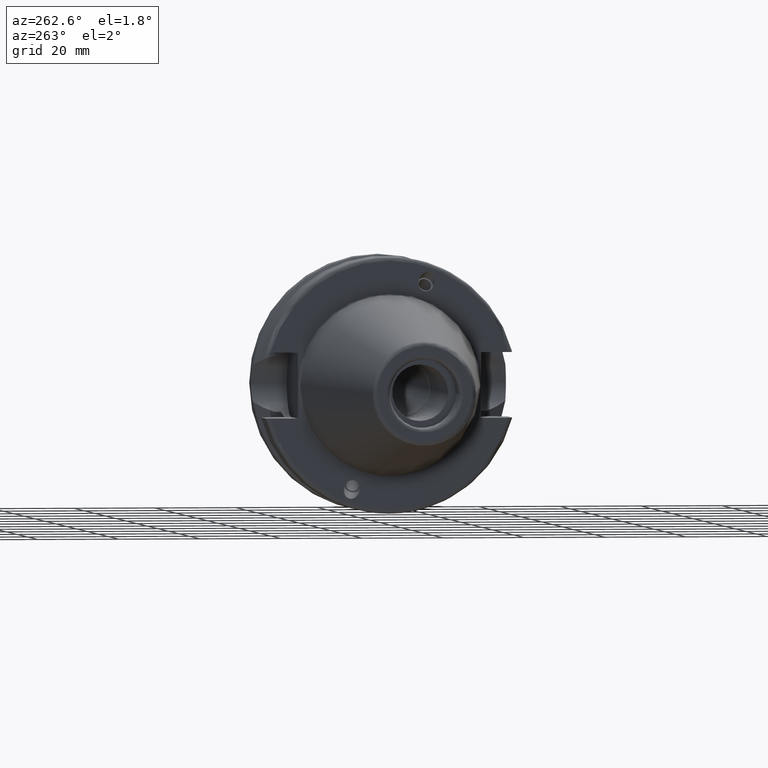
[diagram: clean part render]
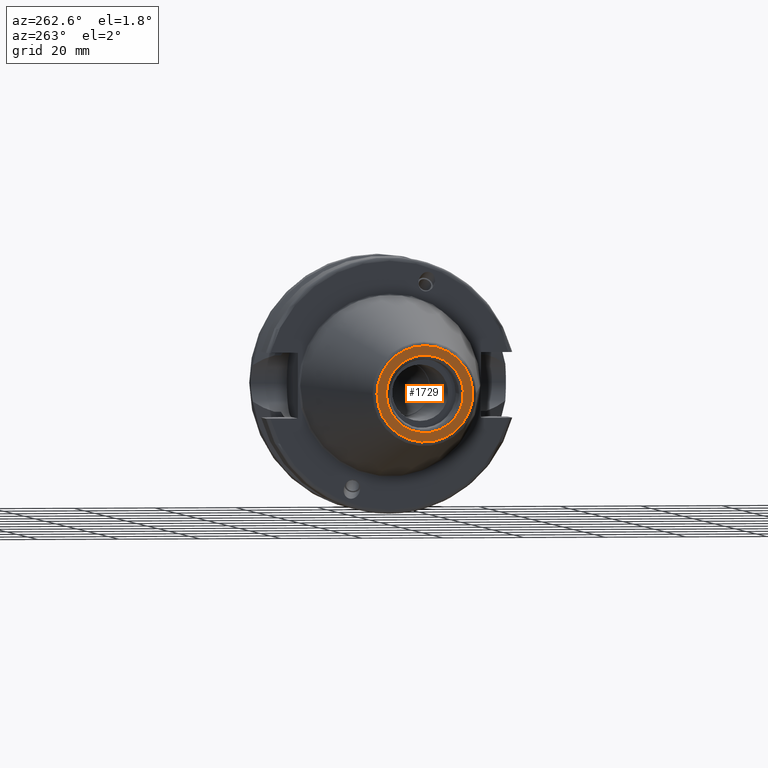
[diagram: same view with one face highlighted and labeled with its STEP entity id]
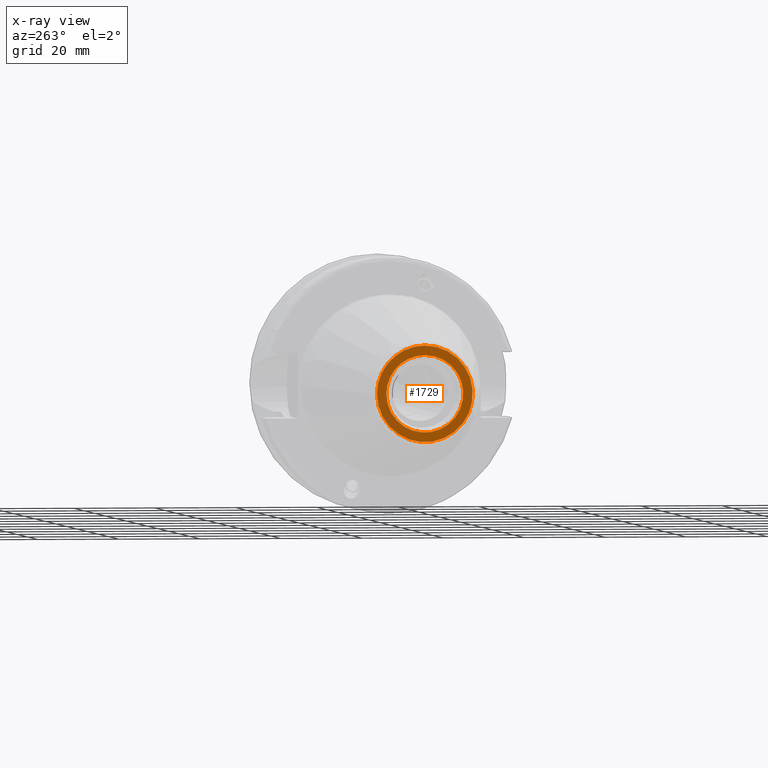
[diagram: x-ray of the same camera — body ghosted, the highlighted face saturated]
A machine part, auxiliary view. The second image highlights one B-rep face of the part: STEP entity #1729.
The next image is the same camera in x-ray: the body ghosted, the highlighted face saturated — about 0% of this face is hidden behind the body in this view.
In plain terms, the highlighted planar face has unit normal (-1, 0, 0).
Its self-contained STEP definition (entity closure, byte-faithful):
#54=PLANE('',#1988);
#89=FACE_BOUND('',#313,.T.);
#210=FACE_OUTER_BOUND('',#312,.T.);
#312=EDGE_LOOP('',(#1535,#1536));
#313=EDGE_LOOP('',(#1537,#1538));
#599=CIRCLE('',#1985,9.5);
#600=CIRCLE('',#1986,9.5);
#602=CIRCLE('',#1989,11.8227555970304);
#603=CIRCLE('',#1990,11.8227555970304);
#797=VERTEX_POINT('',#3349);
#798=VERTEX_POINT('',#3350);
#799=VERTEX_POINT('',#3355);
#800=VERTEX_POINT('',#3356);
#1053=EDGE_CURVE('',#797,#798,#599,.T.);
#1054=EDGE_CURVE('',#798,#797,#600,.T.);
#1056=EDGE_CURVE('',#799,#800,#602,.T.);
#1057=EDGE_CURVE('',#800,#799,#603,.T.);
#1535=ORIENTED_EDGE('',*,*,#1056,.F.);
#1536=ORIENTED_EDGE('',*,*,#1057,.F.);
#1537=ORIENTED_EDGE('',*,*,#1053,.T.);
#1538=ORIENTED_EDGE('',*,*,#1054,.T.);
#1729=ADVANCED_FACE('',(#210,#89),#54,.T.);
#1985=AXIS2_PLACEMENT_3D('',#3351,#2538,#2539);
#1986=AXIS2_PLACEMENT_3D('',#3352,#2540,#2541);
#1988=AXIS2_PLACEMENT_3D('',#3354,#2544,#2545);
#1989=AXIS2_PLACEMENT_3D('',#3357,#2546,#2547);
#1990=AXIS2_PLACEMENT_3D('',#3358,#2548,#2549);
#2538=DIRECTION('center_axis',(1.,0.,0.));
#2539=DIRECTION('ref_axis',(0.,0.,-1.));
#2540=DIRECTION('center_axis',(1.,0.,0.));
#2541=DIRECTION('ref_axis',(0.,0.,-1.));
#2544=DIRECTION('center_axis',(-1.,0.,0.));
#2545=DIRECTION('ref_axis',(0.,0.,1.));
#2546=DIRECTION('center_axis',(1.,0.,0.));
#2547=DIRECTION('ref_axis',(0.,0.,-1.));
#2548=DIRECTION('center_axis',(1.,0.,0.));
#2549=DIRECTION('ref_axis',(0.,0.,-1.));
#3349=CARTESIAN_POINT('',(-65.4,9.5,0.));
#3350=CARTESIAN_POINT('',(-65.4,-1.16341445918999E-15,9.5));
#3351=CARTESIAN_POINT('Origin',(-65.4,0.,0.));
#3352=CARTESIAN_POINT('Origin',(-65.4,0.,0.));
#3354=CARTESIAN_POINT('Origin',(-65.4,11.8227555970304,0.));
#3355=CARTESIAN_POINT('',(-65.4,11.8227555970304,0.));
#3356=CARTESIAN_POINT('',(-65.4,-1.44786997990048E-15,11.8227555970304));
#3357=CARTESIAN_POINT('Origin',(-65.4,0.,0.));
#3358=CARTESIAN_POINT('Origin',(-65.4,0.,0.));